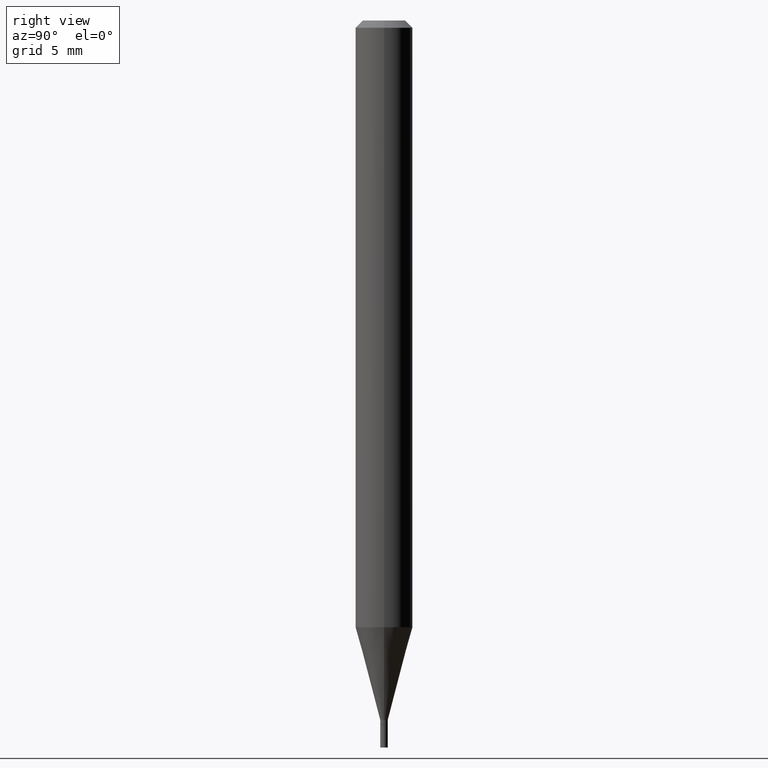
[diagram: clean part render]
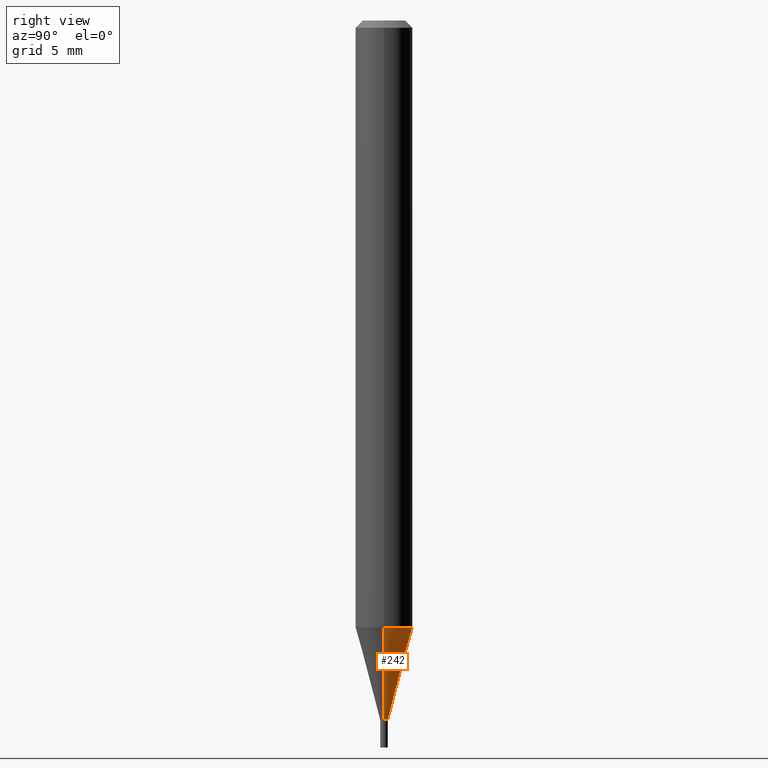
[diagram: same view with one face highlighted and labeled with its STEP entity id]
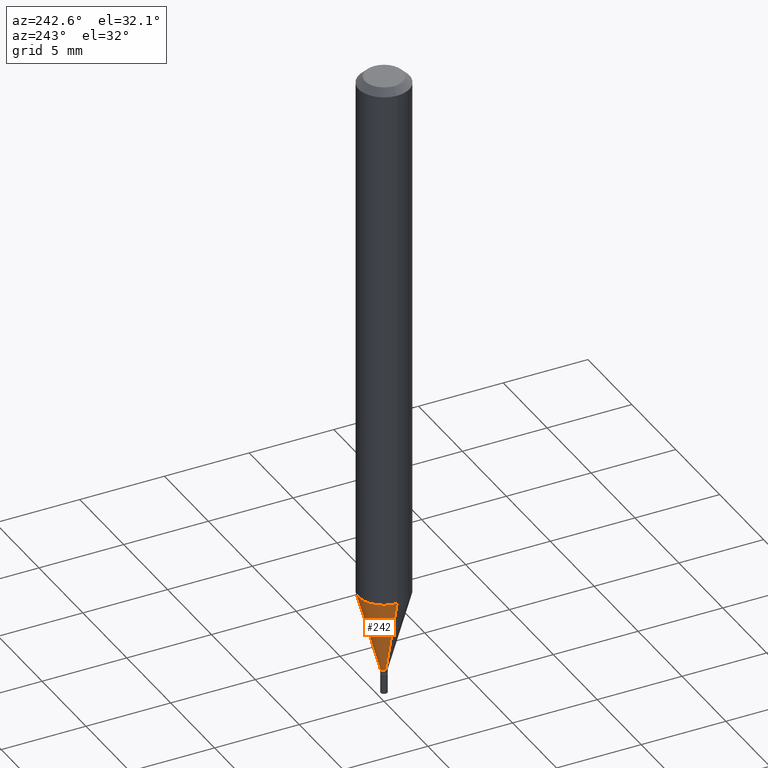
[diagram: same view with one face highlighted and labeled with its STEP entity id]
A machine part, right view. The second image highlights one B-rep face of the part: STEP entity #242.
A second angle (auxiliary view) of the same face is appended — the face is thin or edge-on in the first view.
In plain terms, the highlighted conical surface has half-angle 15 deg.
Its self-contained STEP definition (entity closure, byte-faithful):
#4 = DIRECTION ( 'NONE',  ( 1.000000000000000000, -6.982962677686274599E-15, 0.000000000000000000 ) ) ;
#10 = EDGE_CURVE ( 'NONE', #412, #437, #116, .T. ) ;
#12 = CARTESIAN_POINT ( 'NONE',  ( 0.007849999999999919542, -5.093023828970496460E-15, -1.443000000000000060 ) ) ;
#18 = CARTESIAN_POINT ( 'NONE',  ( 3.061528859075156697E-29, -4.371051821538309893E-15, -1.251918998652473913 ) ) ;
#24 = VECTOR ( 'NONE', #263, 39.37007874015747433 ) ;
#26 = AXIS2_PLACEMENT_3D ( 'NONE', #18, #400, #225 ) ;
#54 = DIRECTION ( 'NONE',  ( -0.2588190451025214611, 5.211531920934551042E-15, 0.9659258262890682012 ) ) ;
#102 = CARTESIAN_POINT ( 'NONE',  ( 3.528811487325152432E-29, -5.038207571950659670E-15, -1.443000000000000060 ) ) ;
#116 = LINE ( 'NONE', #442, #24 ) ;
#143 = CIRCLE ( 'NONE', #434, 0.007849999999999919542 ) ;
#152 = LINE ( 'NONE', #333, #233 ) ;
#175 = FACE_OUTER_BOUND ( 'NONE', #408, .T. ) ;
#184 = AXIS2_PLACEMENT_3D ( 'NONE', #102, #396, #360 ) ;
#191 = CARTESIAN_POINT ( 'NONE',  ( 0.05904999999999998445, -4.783395767655684024E-15, -1.251918998652473913 ) ) ;
#198 = VERTEX_POINT ( 'NONE', #380 ) ;
#225 = DIRECTION ( 'NONE',  ( 1.000000000000000000, -6.982962677686273021E-15, 0.000000000000000000 ) ) ;
#233 = VECTOR ( 'NONE', #54, 39.37007874015747433 ) ;
#242 = ADVANCED_FACE ( 'NONE', ( #175 ), #389, .T. ) ;
#263 = DIRECTION ( 'NONE',  ( 0.2588190451025214611, 1.565188264969621573E-15, 0.9659258262890682012 ) ) ;
#264 = CARTESIAN_POINT ( 'NONE',  ( -0.05904999999999998445, -3.951476336071971189E-15, -1.251918998652473913 ) ) ;
#302 = CIRCLE ( 'NONE', #26, 0.05904999999999999832 ) ;
#315 = EDGE_CURVE ( 'NONE', #412, #198, #143, .T. ) ;
#333 = CARTESIAN_POINT ( 'NONE',  ( -0.007849999999999919542, -4.982429967193492427E-15, -1.443000000000000060 ) ) ;
#354 = ORIENTED_EDGE ( 'NONE', *, *, #374, .F. ) ;
#360 = DIRECTION ( 'NONE',  ( 1.000000000000000000, -6.982962677686274599E-15, 0.000000000000000000 ) ) ;
#367 = ORIENTED_EDGE ( 'NONE', *, *, #463, .T. ) ;
#372 = ORIENTED_EDGE ( 'NONE', *, *, #10, .F. ) ;
#374 = EDGE_CURVE ( 'NONE', #437, #376, #302, .T. ) ;
#376 = VERTEX_POINT ( 'NONE', #264 ) ;
#380 = CARTESIAN_POINT ( 'NONE',  ( -0.007849999999999919542, -4.466953151632730624E-15, -1.443000000000000060 ) ) ;
#389 = CONICAL_SURFACE ( 'NONE', #184, 0.007849999999999919542, 0.2617993877991501295 ) ;
#390 = DIRECTION ( 'NONE',  ( -2.445468806185136597E-29, 3.491481338843145583E-15, 1.000000000000000000 ) ) ;
#391 = CARTESIAN_POINT ( 'NONE',  ( 3.528811487325152432E-29, -5.038207571950659670E-15, -1.443000000000000060 ) ) ;
#396 = DIRECTION ( 'NONE',  ( -2.445468806185136597E-29, 3.491481338843145583E-15, 1.000000000000000000 ) ) ;
#400 = DIRECTION ( 'NONE',  ( -2.445468806185136597E-29, 3.491481338843145583E-15, 1.000000000000000000 ) ) ;
#408 = EDGE_LOOP ( 'NONE', ( #450, #367, #354, #372 ) ) ;
#412 = VERTEX_POINT ( 'NONE', #12 ) ;
#434 = AXIS2_PLACEMENT_3D ( 'NONE', #391, #390, #4 ) ;
#437 = VERTEX_POINT ( 'NONE', #191 ) ;
#442 = CARTESIAN_POINT ( 'NONE',  ( 0.007849999999999919542, -5.093023828970496460E-15, -1.443000000000000060 ) ) ;
#450 = ORIENTED_EDGE ( 'NONE', *, *, #315, .T. ) ;
#463 = EDGE_CURVE ( 'NONE', #198, #376, #152, .T. ) ;